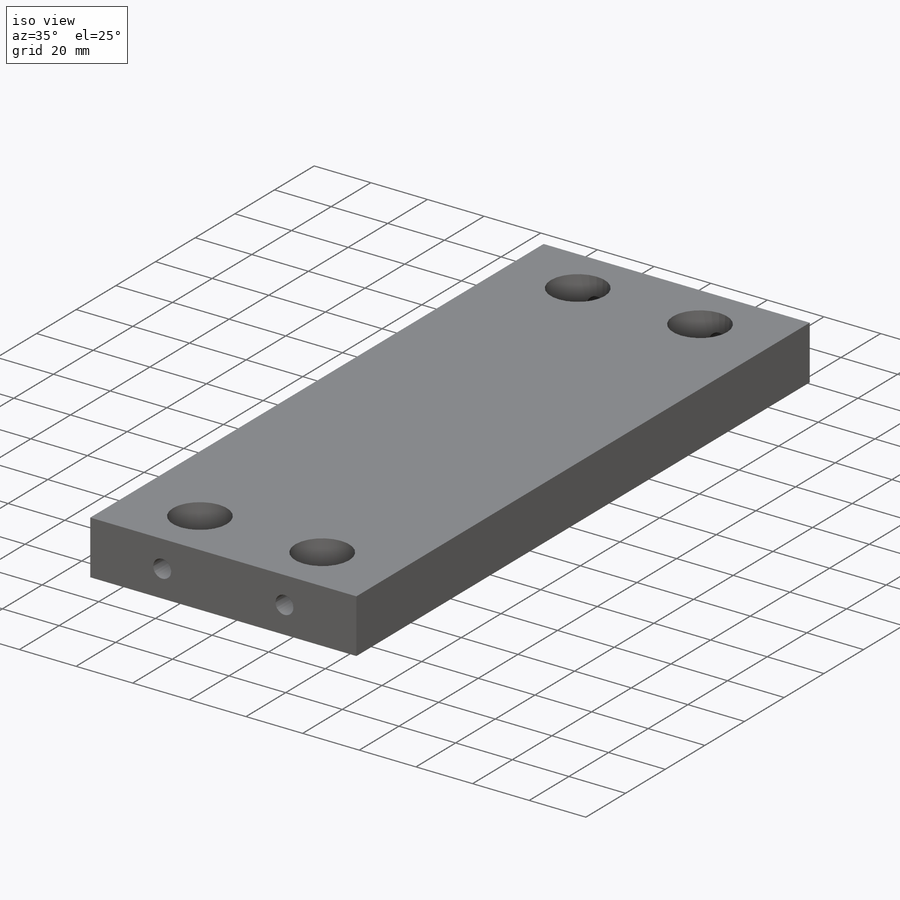
[diagram: iso view]
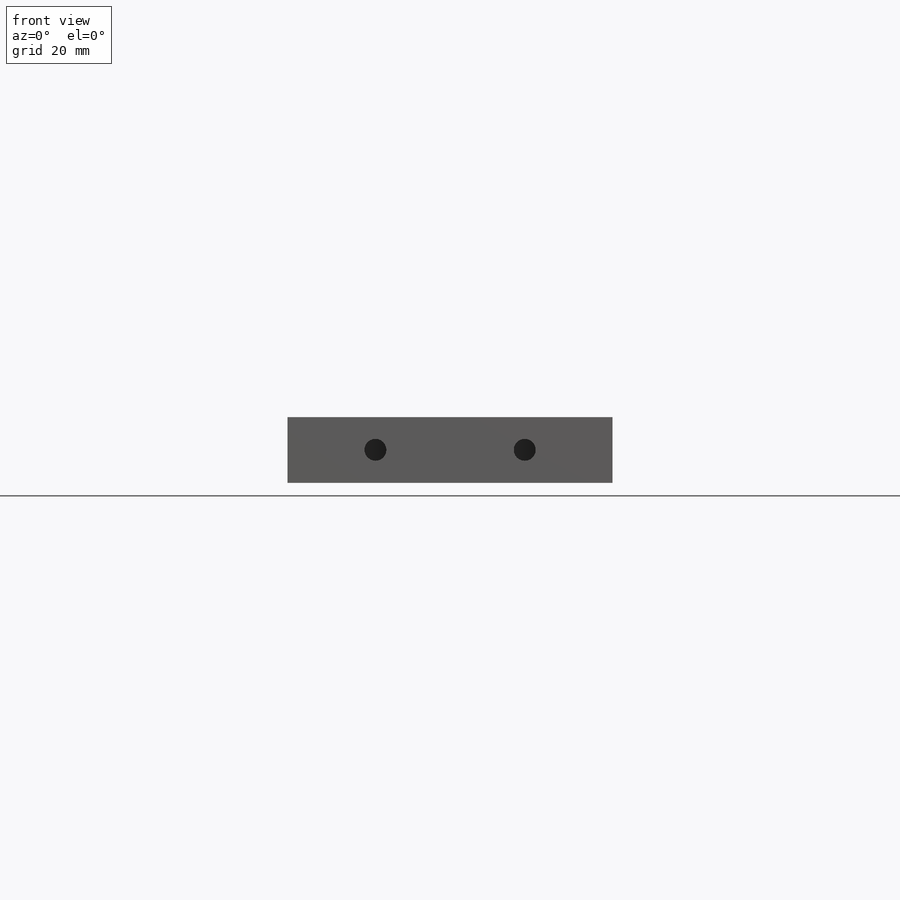
[diagram: front view]
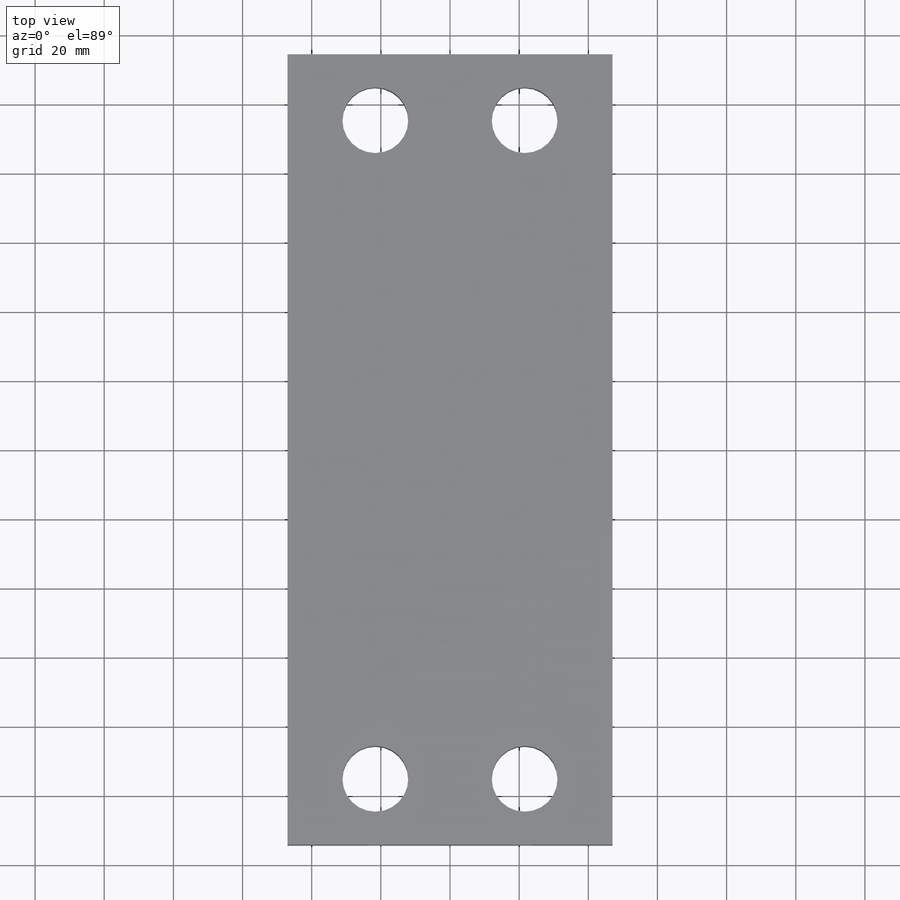
[diagram: top view]
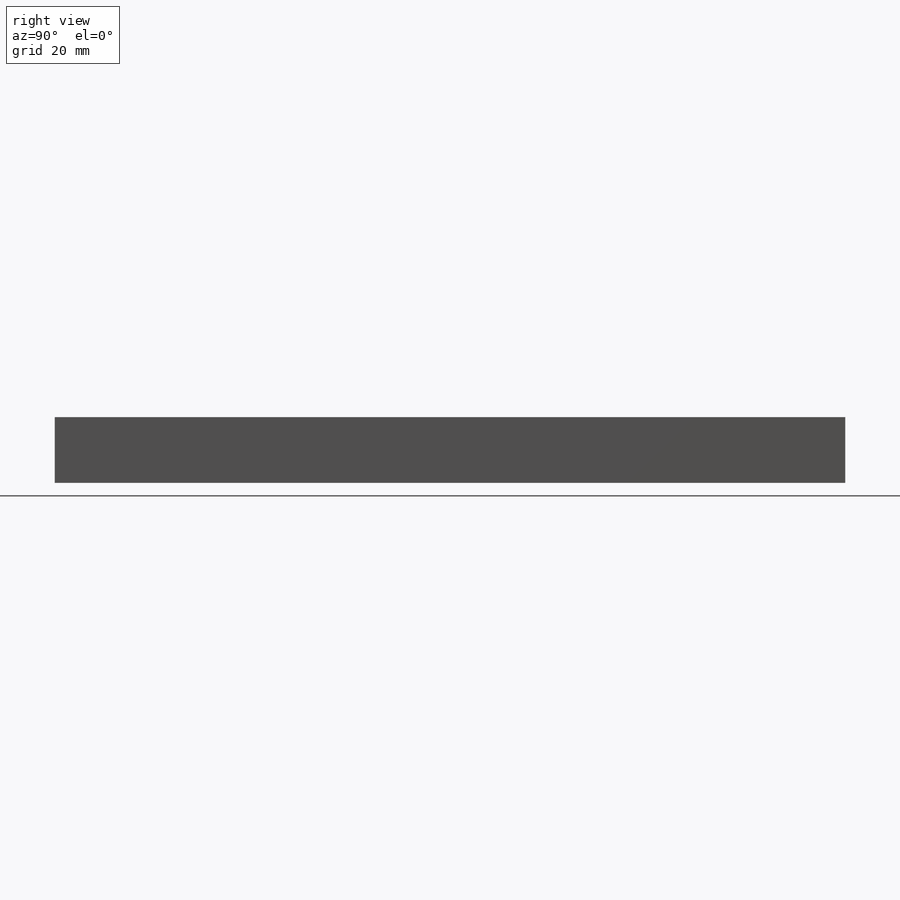
[diagram: right view]
SOLIDWORKS PART (.sldprt)
format: sldprt  version: not decoded by parser v0  size: 400,896 bytes
history: native  units: mm
features: sketch x5, mirror x4, hole x2, material x1, extrude x1 (+11 scaffold rows collapsed)
feature tree (24):
  scaffold x11  (default folders/planes/origin — collapsed)
  material  "Pine"
  sketch  "Sketch1"  dims[D1=228.6mm D2=93.98mm]
  extrude  "Boss-Extrude1"  Depth=19.05mm
  hole  "3/4 (0.75) Diameter Hole1"  Diameter=19.05mm Depth=19.05mm
  sketch  "Sketch3"  dims[D1=25.4mm D2=19.05mm]
  sketch  "Sketch2"  dims[hole-wizard template sketch: 47 standard entries collapsed; hole parameters kept: c15.Hole Depth=19.05mm c15.D3=~14.816244mm c15.Drill Angle=118.0deg]
  mirror  "Mirror1"
  mirror  "Mirror4"
  hole  "1/4 (0.25) Diameter Hole1"  Diameter=6.35mm Depth=19.05mm
  sketch  "Sketch5"  dims[D1=25.4mm D2=9.525mm]
  sketch  "Sketch4"  dims[hole-wizard template sketch: 47 standard entries collapsed; hole parameters kept: c15.Hole Depth=19.05mm c15.D3=~14.816244mm c15.Drill Angle=118.0deg]
  mirror  "Mirror5"
  mirror  "Mirror10"
decode coverage: 8 of 12 modeling features carry decoded parameters
note: ~ marks probable driven/reference dimensions
note: suppression state not decoded; provenance and decode notes live in map.json
